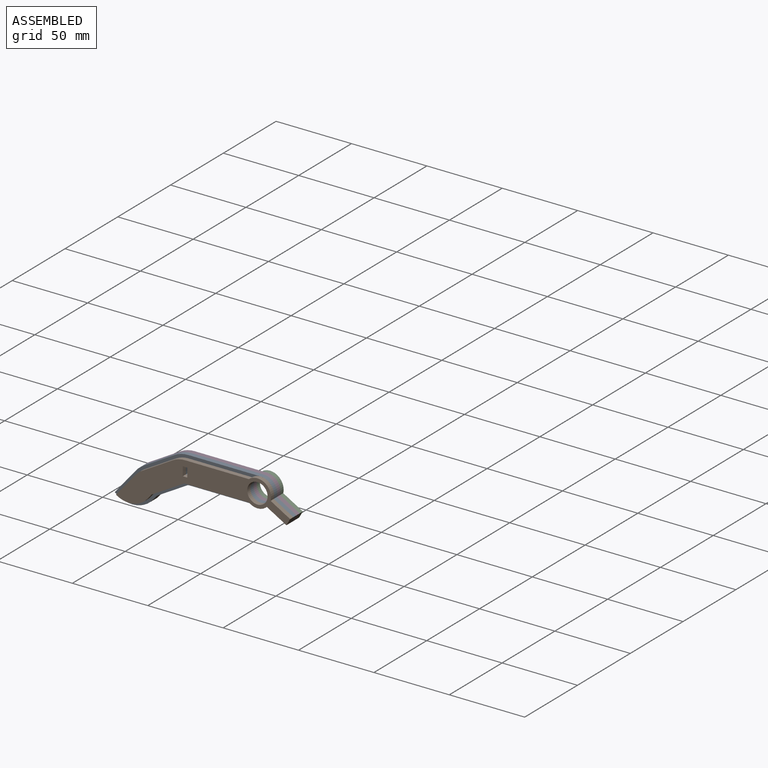
[diagram: assembled view]
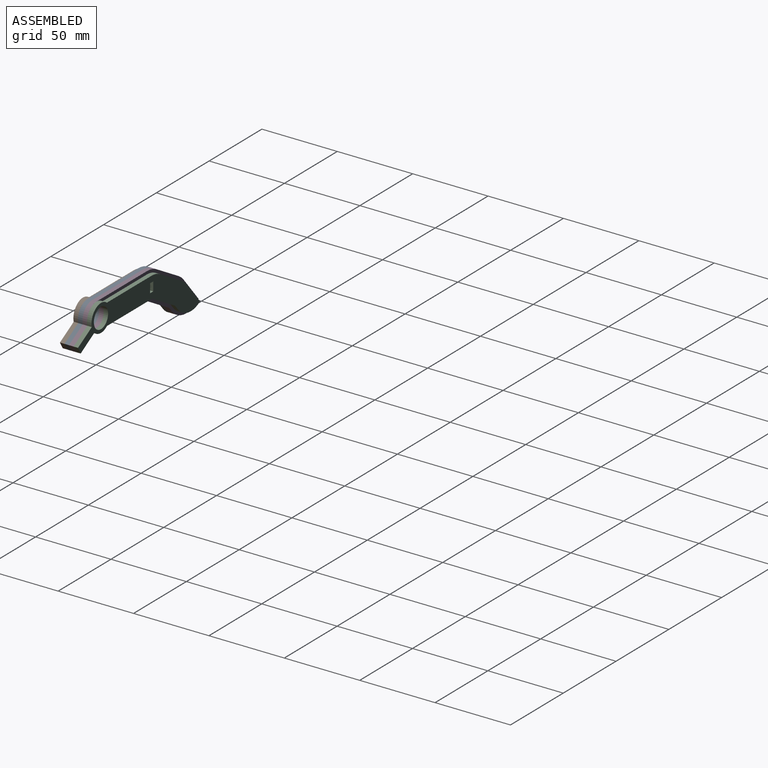
[diagram: assembled view, second angle]
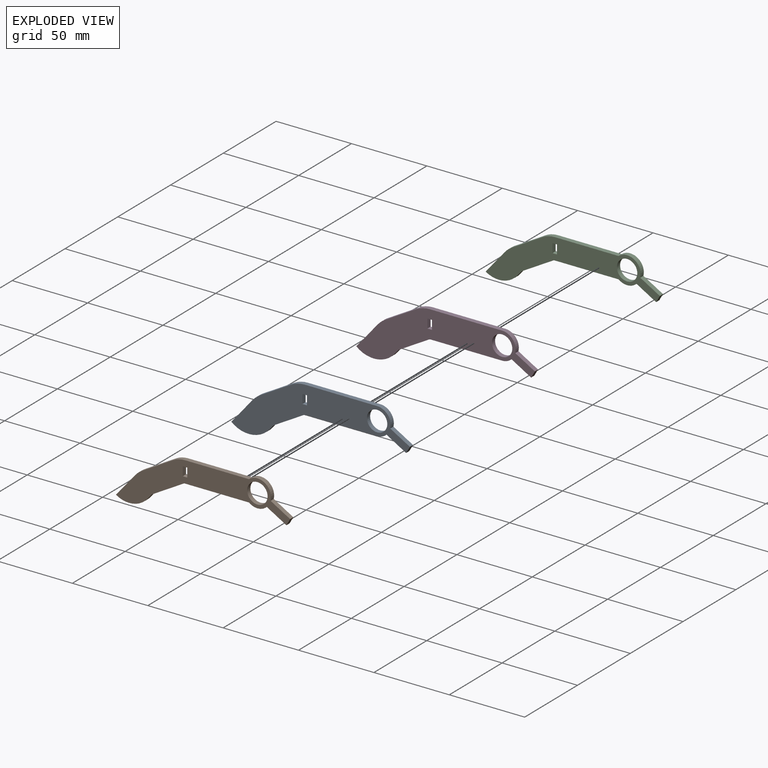
[diagram: exploded view]
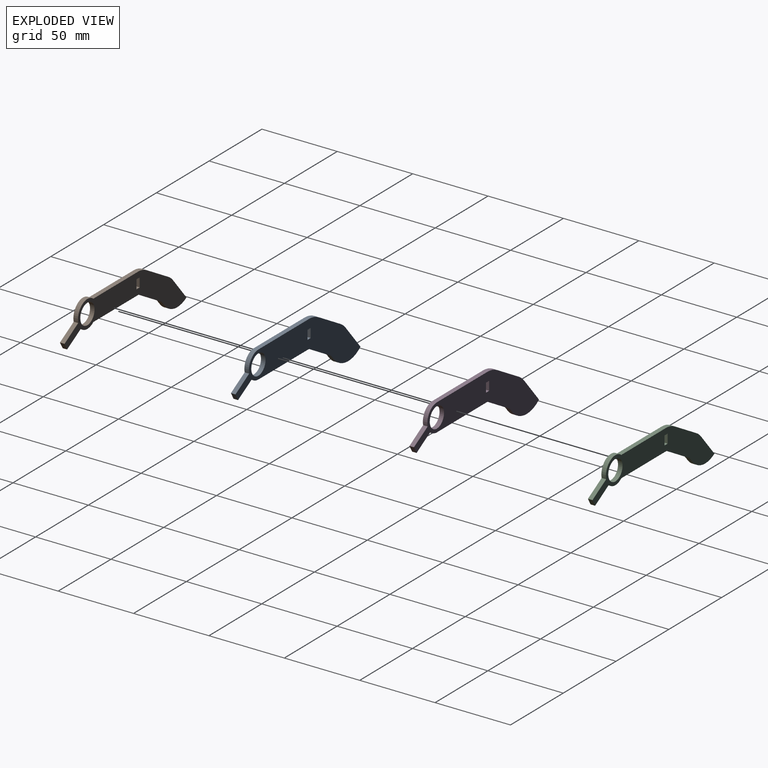
[diagram: exploded view, second angle]
ASSEMBLY  parts=4 mates=3
PART A: 23 faces, bbox 118.4x3x39.5 mm
  f0: plane 48x3mm, normal (0,0,1), area 144mm2, adj f1,f18,f19,f20
  f1: cylinder r=18mm len=9mm, axis (0,1,0), area 28.3mm2, adj f0,f2,f19,f20
  f2: plane 20.78x12mm, normal (-0.5,0,0.87), area 72mm2, adj f1,f3,f19,f20
  f3: cylinder r=18mm len=4.79mm, axis (0,1,0), area 18.8mm2, adj f2,f4,f19,f20
  f4: plane 16.85x14.14mm, normal (-0.77,0,0.64), area 66mm2, adj f3,f5,f19,f20
  f5: cylinder r=18mm len=25.36mm, axis (0,1,0), area 84.8mm2, adj f4,f6,f19,f20
  f6: plane 3x2.66mm, normal (0.77,0,-0.64), area 10.4mm2, adj f5,f19,f20,f21
  f7: plane 19.63x11.33mm, normal (0.5,0,-0.87), area 68mm2, adj f19,f20,f21,f22
  f8: plane 47.2x3mm, normal (0,0,-1), area 141.6mm2, adj f9,f19,f20,f22
  f9: cylinder r=9mm len=6.24mm, axis (0,1,0), area 20.7mm2, adj f8,f10,f19,f20
  f10: plane 12.99x7.5mm, normal (-0.5,0,-0.87), area 45mm2, adj f9,f11,f19,f20
  f11: plane 4.33x3mm, normal (0.87,0,-0.5), area 15mm2, adj f10,f12,f19,f20
  f12: plane 12.99x7.5mm, normal (0.5,0,0.87), area 45mm2, adj f11,f18,f19,f20
  f13: plane 3x3mm, normal (0,0,-1), area 9mm2, adj f14,f16,f19,f20
  f14: plane 6x3mm, normal (-1,0,0), area 18mm2, adj f13,f15,f19,f20
  f15: plane 3x3mm, normal (0,0,1), area 9mm2, adj f14,f16,f19,f20
  f16: plane 6x3mm, normal (1,0,0), area 18mm2, adj f13,f15,f19,f20
  f17: cylinder r=6.75mm len=13.5mm, axis (0,1,0), area 127.2mm2, adj f19,f20
  f18: cylinder r=9mm len=11.16mm, axis (0,1,0), area 48.9mm2, adj f0,f12,f19,f20
  f19: plane 118.44x39.49mm, normal (0,-1,0), area 1803.8mm2, adj f0,f1,f2,f3,f4,f5,f6,f7
  f20: plane 118.44x39.49mm, normal (0,1,0), area 1803.8mm2, adj f0,f1,f2,f3,f4,f5,f6,f7
  f21: cylinder r=3mm len=3mm, axis (0,-1,0), area 3.1mm2, adj f6,f7,f19,f20
  f22: cylinder r=3mm len=3mm, axis (0,-1,0), area 4.7mm2, adj f7,f8,f19,f20
PART B: 21 faces, bbox 115.5x3x37.5 mm
  f0: plane 3x3mm, normal (0,0,-1), area 9mm2, adj f1,f18,f19,f20
  f1: plane 6x3mm, normal (-1,0,0), area 18mm2, adj f0,f2,f19,f20
  f2: plane 3x3mm, normal (0,0,1), area 9mm2, adj f1,f18,f19,f20
  f3: cylinder r=9mm len=11.89mm, axis (0,1,0), area 39mm2, adj f4,f17,f19,f20
  f4: plane 12.99x7.5mm, normal (-0.5,0,-0.87), area 45mm2, adj f3,f5,f19,f20
  f5: plane 4.33x3mm, normal (0.87,0,-0.5), area 15mm2, adj f4,f6,f19,f20
  f6: plane 12.99x7.5mm, normal (0.5,0,0.87), area 45mm2, adj f5,f7,f19,f20
  f7: cylinder r=9mm len=14.66mm, axis (0,1,0), area 67.3mm2, adj f6,f8,f19,f20
  f8: plane 42.34x3mm, normal (0,0,1), area 127mm2, adj f7,f9,f19,f20
  f9: cylinder r=16mm len=8mm, axis (0,1,0), area 25.1mm2, adj f8,f10,f19,f20
  f10: plane 20.78x12mm, normal (-0.5,0,0.87), area 72mm2, adj f9,f11,f19,f20
  f11: cylinder r=16mm len=4.26mm, axis (0,1,0), area 16.8mm2, adj f10,f12,f19,f20
  f12: plane 15.22x12.78mm, normal (-0.77,0,0.64), area 59.6mm2, adj f11,f13,f19,f20
  f13: cylinder r=16mm len=20.93mm, axis (0,1,0), area 69.4mm2, adj f12,f14,f19,f20
  f14: plane 3.33x3mm, normal (0.77,0,-0.64), area 13.1mm2, adj f13,f15,f19,f20
  f15: plane 21.55x12.44mm, normal (0.5,0,-0.87), area 74.7mm2, adj f14,f17,f19,f20
  f16: cylinder r=6.75mm len=13.5mm, axis (0,1,0), area 127.2mm2, adj f19,f20
  f17: plane 42.88x3mm, normal (0,0,-1), area 128.6mm2, adj f3,f15,f19,f20
  f18: plane 6x3mm, normal (1,0,0), area 18mm2, adj f0,f2,f19,f20
  f19: plane 115.54x37.49mm, normal (0,-1,0), area 1398.4mm2, adj f0,f1,f2,f3,f4,f5,f6,f7
  f20: plane 115.54x37.49mm, normal (0,1,0), area 1398.4mm2, adj f0,f1,f2,f3,f4,f5,f6,f7
PART C: same geometry as B
PART D: same geometry as A
PLACE A t=(31.88,1.48,-2.66)mm fixed
PLACE B t=(31.88,-1.52,-2.66)mm
PLACE C t=(31.88,7.48,-2.66)mm
PLACE D t=(31.88,4.48,-2.66)mm
MATE fastened A.f20 <-> D.f19  axis (0,1,0) through (10.89,1.48,-8.92)mm
MATE fastened C.f3 <-> D.f9  axis (0,-1,0) through (55.88,4.48,-2.66)mm
MATE fastened A.f17 <-> B.f3  axis (0,-1,0) through (55.88,-1.52,-2.66)mm
